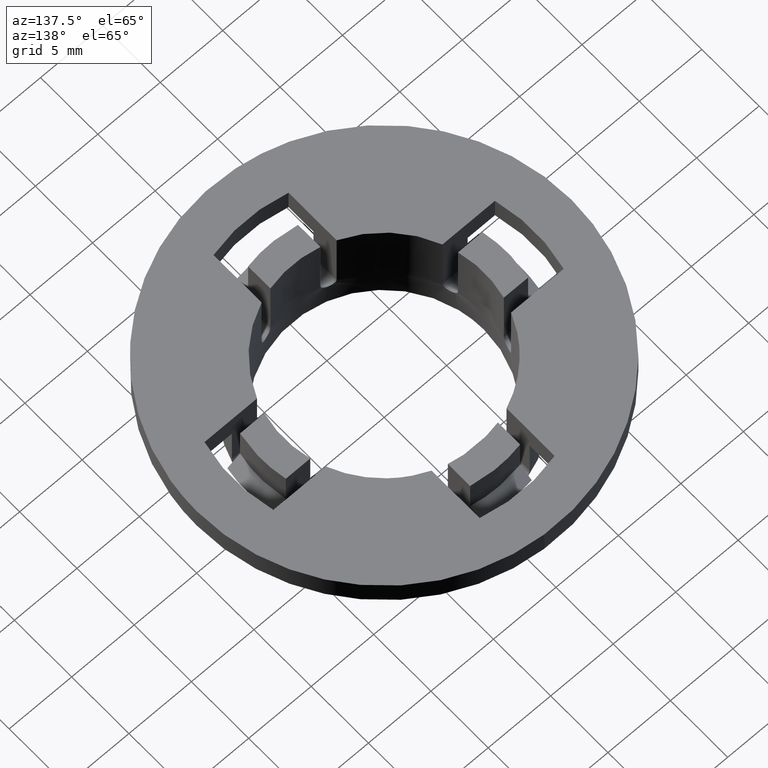
[diagram: clean part render]
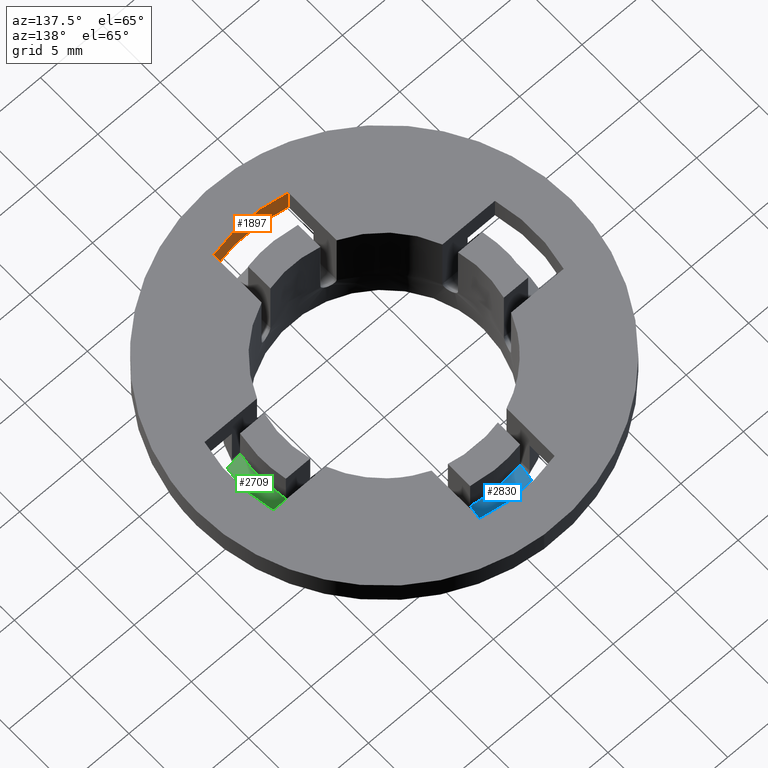
[diagram: same view with three faces highlighted in distinct colors, each labeled with its STEP entity id]
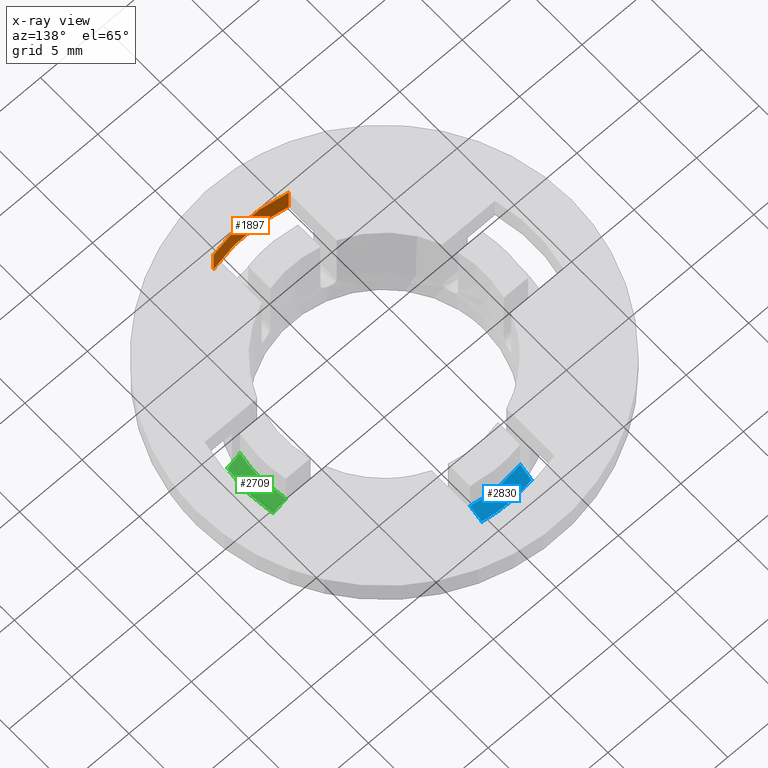
[diagram: x-ray of the same camera — body ghosted, the three highlighted faces saturated]
A machine part, auxiliary view with three faces highlighted in distinct colors.
The next image is the same camera in x-ray (body ghosted, the three faces saturated) — at least one of them is partly hidden behind the body in this view.
Their STEP definitions:

[orange] entity #1897 — the highlighted face is a freeform B-spline surface patch.
#1823=CARTESIAN_POINT('',(-2.999999999999880,-11.618950038622140,7.999999999999900));
#1824=VERTEX_POINT('',#1823);
#1830=CARTESIAN_POINT('',(-2.999999999999880,-11.618950038622140,5.999999999999890));
#1831=VERTEX_POINT('',#1830);
#1832=CARTESIAN_POINT('',(-2.999999999999880,-11.618950038622140,5.999999999999890));
#1833=CARTESIAN_POINT('',(-2.999999999999880,-11.618950038622140,7.999999999999900));
#1834=QUASI_UNIFORM_CURVE('',1,(#1832,#1833),.UNSPECIFIED.,.F.,.U.);
#1835=EDGE_CURVE('',#1831,#1824,#1834,.T.);
#1845=CARTESIAN_POINT('',(3.287759993963751,-11.540824676862982,5.949999999999888));
#1846=CARTESIAN_POINT('',(3.287759993963751,-11.540824676862982,8.051249999999900));
#1847=CARTESIAN_POINT('',(-0.001068221603283,-12.477748868756960,5.949999999999888));
#1848=CARTESIAN_POINT('',(-0.001068221603283,-12.477748868756960,8.051249999999900));
#1849=CARTESIAN_POINT('',(-3.289735968574423,-11.540261576630924,5.949999999999888));
#1850=CARTESIAN_POINT('',(-3.289735968574423,-11.540261576630924,8.051249999999900));
#1858=(BOUNDED_SURFACE()B_SPLINE_SURFACE(1,2,((#1845,#1847,#1849),(#1846,#1848,#1850)),.UNSPECIFIED.,.F.,.F.,.U.)B_SPLINE_SURFACE_WITH_KNOTS((2,2),(3,3),(0.0,2.101250000000012),(0.0,6.705851421206274),.UNSPECIFIED.)GEOMETRIC_REPRESENTATION_ITEM()RATIONAL_B_SPLINE_SURFACE(((0.999675483069585,0.957953743749510,0.992521742116545),(0.999675483069585,0.957953743749510,0.992521742116545)))REPRESENTATION_ITEM('')SURFACE());
#1859=CARTESIAN_POINT('',(3.000000000000115,-11.618950038622140,7.999999999999900));
#1860=VERTEX_POINT('',#1859);
#1861=CARTESIAN_POINT('',(-2.999999999999882,-11.618950038622140,7.999999999999900));
#1862=CARTESIAN_POINT('',(1.116850E-013,-12.393546707863619,7.999999999999900));
#1863=CARTESIAN_POINT('',(3.000000000000112,-11.618950038622140,7.999999999999900));
#1871=(BOUNDED_CURVE()B_SPLINE_CURVE(2,(#1861,#1862,#1863),.UNSPECIFIED.,.F.,.U.)CURVE()GEOMETRIC_REPRESENTATION_ITEM()QUASI_UNIFORM_CURVE()RATIONAL_B_SPLINE_CURVE((1.0,0.968245836551854,1.0))REPRESENTATION_ITEM(''));
#1872=EDGE_CURVE('',#1824,#1860,#1871,.T.);
#1873=ORIENTED_EDGE('',*,*,#1872,.T.);
#1874=CARTESIAN_POINT('',(3.000000000000115,-11.618950038622140,5.999999999999890));
#1875=VERTEX_POINT('',#1874);
#1876=CARTESIAN_POINT('',(3.000000000000115,-11.618950038622140,5.999999999999890));
#1877=CARTESIAN_POINT('',(3.000000000000115,-11.618950038622140,7.999999999999900));
#1878=QUASI_UNIFORM_CURVE('',1,(#1876,#1877),.UNSPECIFIED.,.F.,.U.);
#1879=EDGE_CURVE('',#1875,#1860,#1878,.T.);
#1880=ORIENTED_EDGE('',*,*,#1879,.F.);
#1881=CARTESIAN_POINT('',(-2.999999999999882,-11.618950038622140,5.999999999999890));
#1882=CARTESIAN_POINT('',(1.116850E-013,-12.393546707863619,5.999999999999890));
#1883=CARTESIAN_POINT('',(3.000000000000112,-11.618950038622140,5.999999999999890));
#1891=(BOUNDED_CURVE()B_SPLINE_CURVE(2,(#1881,#1882,#1883),.UNSPECIFIED.,.F.,.U.)CURVE()GEOMETRIC_REPRESENTATION_ITEM()QUASI_UNIFORM_CURVE()RATIONAL_B_SPLINE_CURVE((1.0,0.968245836551854,1.0))REPRESENTATION_ITEM(''));
#1892=EDGE_CURVE('',#1831,#1875,#1891,.T.);
#1893=ORIENTED_EDGE('',*,*,#1892,.F.);
#1894=ORIENTED_EDGE('',*,*,#1835,.T.);
#1895=EDGE_LOOP('',(#1873,#1880,#1893,#1894));
#1896=FACE_OUTER_BOUND('',#1895,.T.);
#1897=ADVANCED_FACE('',(#1896),#1858,.F.);

[blue] entity #2830 — the highlighted face is a freeform B-spline surface patch.
#2407=CARTESIAN_POINT('',(-2.0,10.714942836991559,4.622649730810410));
#2408=VERTEX_POINT('',#2407);
#2425=CARTESIAN_POINT('',(-2.000000000000120,9.695875411740790,5.199999999999870));
#2426=VERTEX_POINT('',#2425);
#2432=CARTESIAN_POINT('',(-2.0,10.714942836991559,4.622649730810411));
#2433=CARTESIAN_POINT('',(-2.0,10.375399637564531,4.815356854719878));
#2434=CARTESIAN_POINT('',(-2.0,10.035725022797751,5.007833366651726));
#2435=CARTESIAN_POINT('',(-2.000000000000120,9.695875411740790,5.199999999999870));
#2436=QUASI_UNIFORM_CURVE('',3,(#2432,#2433,#2434,#2435),.UNSPECIFIED.,.F.,.U.);
#2437=EDGE_CURVE('',#2408,#2426,#2436,.T.);
#2529=CARTESIAN_POINT('',(2.0,10.714942836991559,4.622649730810410));
#2530=VERTEX_POINT('',#2529);
#2538=CARTESIAN_POINT('',(1.999999999999885,9.695875411740841,5.199999999999870));
#2539=VERTEX_POINT('',#2538);
#2540=CARTESIAN_POINT('',(1.999999999999885,9.695875411740841,5.199999999999870));
#2541=CARTESIAN_POINT('',(2.0,10.035725022797770,5.007833366651711));
#2542=CARTESIAN_POINT('',(2.0,10.375399637564540,4.815356854719870));
#2543=CARTESIAN_POINT('',(2.0,10.714942836991559,4.622649730810411));
#2544=QUASI_UNIFORM_CURVE('',3,(#2540,#2541,#2542,#2543),.UNSPECIFIED.,.F.,.U.);
#2545=EDGE_CURVE('',#2539,#2530,#2544,.T.);
#2780=CARTESIAN_POINT('',(-2.000000000000003,10.714942836991570,4.622649730810410));
#2781=CARTESIAN_POINT('',(3.469447E-015,11.088253274653511,4.622649730810410));
#2782=CARTESIAN_POINT('',(2.000000000000001,10.714942836991570,4.622649730810410));
#2790=(BOUNDED_CURVE()B_SPLINE_CURVE(2,(#2780,#2781,#2782),.UNSPECIFIED.,.F.,.U.)CURVE()GEOMETRIC_REPRESENTATION_ITEM()QUASI_UNIFORM_CURVE()RATIONAL_B_SPLINE_CURVE((1.0,0.983022278623092,1.0))REPRESENTATION_ITEM(''));
#2791=EDGE_CURVE('',#2408,#2530,#2790,.T.);
#2798=CARTESIAN_POINT('',(2.189091279791165,9.629304459240078,5.214433756729606));
#2799=CARTESIAN_POINT('',(2.421993965951209,10.653789319745238,4.607855130162431));
#2800=CARTESIAN_POINT('',(-0.000440647384729,10.127064735581298,5.214433756729605));
#2801=CARTESIAN_POINT('',(-0.000487528919775,11.204507509031361,4.607855130162429));
#2802=CARTESIAN_POINT('',(-2.189929249322749,9.629113919928424,5.214433756729606));
#2803=CARTESIAN_POINT('',(-2.422921089076628,10.653578508497949,4.607855130162430));
#2811=(BOUNDED_SURFACE()B_SPLINE_SURFACE(1,2,((#2798,#2800,#2802),(#2799,#2801,#2803)),.UNSPECIFIED.,.F.,.F.,.U.)B_SPLINE_SURFACE_WITH_KNOTS((2,2),(3,3),(0.0,1.0),(0.0,4.905964036069069),.UNSPECIFIED.)GEOMETRIC_REPRESENTATION_ITEM()RATIONAL_B_SPLINE_SURFACE(((0.997702792336946,0.970675119236128,0.993206543853067),(0.997702792336946,0.970675119236128,0.993206543853067)))REPRESENTATION_ITEM('')SURFACE());
#2812=ORIENTED_EDGE('',*,*,#2791,.F.);
#2813=ORIENTED_EDGE('',*,*,#2437,.T.);
#2814=CARTESIAN_POINT('',(-2.000000000000120,9.695875411740790,5.199999999999870));
#2815=CARTESIAN_POINT('',(-1.222980E-013,10.108421966862215,5.199999999999830));
#2816=CARTESIAN_POINT('',(1.999999999999885,9.695875411740841,5.199999999999870));
#2824=(BOUNDED_CURVE()B_SPLINE_CURVE(2,(#2814,#2815,#2816),.UNSPECIFIED.,.F.,.U.)CURVE()GEOMETRIC_REPRESENTATION_ITEM()QUASI_UNIFORM_CURVE()RATIONAL_B_SPLINE_CURVE((1.0,0.979381354721294,1.0))REPRESENTATION_ITEM(''));
#2825=EDGE_CURVE('',#2426,#2539,#2824,.T.);
#2826=ORIENTED_EDGE('',*,*,#2825,.T.);
#2827=ORIENTED_EDGE('',*,*,#2545,.T.);
#2828=EDGE_LOOP('',(#2812,#2813,#2826,#2827));
#2829=FACE_OUTER_BOUND('',#2828,.T.);
#2830=ADVANCED_FACE('',(#2829),#2811,.T.);

[green] entity #2709 — the highlighted face is a freeform B-spline surface patch.
#2487=CARTESIAN_POINT('',(10.714942836991559,2.0,4.622649730810410));
#2488=VERTEX_POINT('',#2487);
#2505=CARTESIAN_POINT('',(9.695875411740790,2.000000000000120,5.199999999999830));
#2506=VERTEX_POINT('',#2505);
#2512=CARTESIAN_POINT('',(10.714942836991559,2.0,4.622649730810411));
#2513=CARTESIAN_POINT('',(10.375399637564531,2.0,4.815356854719874));
#2514=CARTESIAN_POINT('',(10.035725022797759,2.0,5.007833366651719));
#2515=CARTESIAN_POINT('',(9.695875411740790,2.000000000000120,5.199999999999830));
#2516=QUASI_UNIFORM_CURVE('',3,(#2512,#2513,#2514,#2515),.UNSPECIFIED.,.F.,.U.);
#2517=EDGE_CURVE('',#2488,#2506,#2516,.T.);
#2609=CARTESIAN_POINT('',(10.714942836991559,-2.0,4.622649730810410));
#2610=VERTEX_POINT('',#2609);
#2618=CARTESIAN_POINT('',(9.695875411740841,-1.999999999999885,5.199999999999830));
#2619=VERTEX_POINT('',#2618);
#2620=CARTESIAN_POINT('',(9.695875411740841,-1.999999999999885,5.199999999999830));
#2621=CARTESIAN_POINT('',(10.035725022797781,-2.0,5.007833366651705));
#2622=CARTESIAN_POINT('',(10.375399637564550,-2.0,4.815356854719867));
#2623=CARTESIAN_POINT('',(10.714942836991559,-2.0,4.622649730810411));
#2624=QUASI_UNIFORM_CURVE('',3,(#2620,#2621,#2622,#2623),.UNSPECIFIED.,.F.,.U.);
#2625=EDGE_CURVE('',#2619,#2610,#2624,.T.);
#2659=CARTESIAN_POINT('',(10.714942836991570,2.000000000000001,4.622649730810410));
#2660=CARTESIAN_POINT('',(11.088253274653512,2.602085E-015,4.622649730810410));
#2661=CARTESIAN_POINT('',(10.714942836991570,-1.999999999999998,4.622649730810410));
#2669=(BOUNDED_CURVE()B_SPLINE_CURVE(2,(#2659,#2660,#2661),.UNSPECIFIED.,.F.,.U.)CURVE()GEOMETRIC_REPRESENTATION_ITEM()QUASI_UNIFORM_CURVE()RATIONAL_B_SPLINE_CURVE((1.0,0.983022278623092,1.0))REPRESENTATION_ITEM(''));
#2670=EDGE_CURVE('',#2488,#2610,#2669,.T.);
#2677=CARTESIAN_POINT('',(9.629304459240148,-2.189091279791181,5.214433756729565));
#2678=CARTESIAN_POINT('',(10.653789319745229,-2.421993965951209,4.607855130162431));
#2679=CARTESIAN_POINT('',(10.127064735581373,0.000440647384729,5.214433756729565));
#2680=CARTESIAN_POINT('',(11.204507509031361,0.000487528919775,4.607855130162430));
#2681=CARTESIAN_POINT('',(9.629113919928489,2.189929249322765,5.214433756729565));
#2682=CARTESIAN_POINT('',(10.653578508497949,2.422921089076628,4.607855130162431));
#2690=(BOUNDED_SURFACE()B_SPLINE_SURFACE(1,2,((#2677,#2679,#2681),(#2678,#2680,#2682)),.UNSPECIFIED.,.F.,.F.,.U.)B_SPLINE_SURFACE_WITH_KNOTS((2,2),(3,3),(0.0,1.0),(0.0,4.905964036069069),.UNSPECIFIED.)GEOMETRIC_REPRESENTATION_ITEM()RATIONAL_B_SPLINE_SURFACE(((0.997702792336946,0.970675119236128,0.993206543853067),(0.997702792336946,0.970675119236128,0.993206543853067)))REPRESENTATION_ITEM('')SURFACE());
#2691=ORIENTED_EDGE('',*,*,#2670,.F.);
#2692=ORIENTED_EDGE('',*,*,#2517,.T.);
#2693=CARTESIAN_POINT('',(9.695875411740785,2.000000000000121,5.199999999999830));
#2694=CARTESIAN_POINT('',(10.108421966862215,1.270685E-013,5.199999999999830));
#2695=CARTESIAN_POINT('',(9.695875411740834,-1.999999999999881,5.199999999999830));
#2703=(BOUNDED_CURVE()B_SPLINE_CURVE(2,(#2693,#2694,#2695),.UNSPECIFIED.,.F.,.U.)CURVE()GEOMETRIC_REPRESENTATION_ITEM()QUASI_UNIFORM_CURVE()RATIONAL_B_SPLINE_CURVE((1.0,0.979381354721294,1.0))REPRESENTATION_ITEM(''));
#2704=EDGE_CURVE('',#2506,#2619,#2703,.T.);
#2705=ORIENTED_EDGE('',*,*,#2704,.T.);
#2706=ORIENTED_EDGE('',*,*,#2625,.T.);
#2707=EDGE_LOOP('',(#2691,#2692,#2705,#2706));
#2708=FACE_OUTER_BOUND('',#2707,.T.);
#2709=ADVANCED_FACE('',(#2708),#2690,.T.);